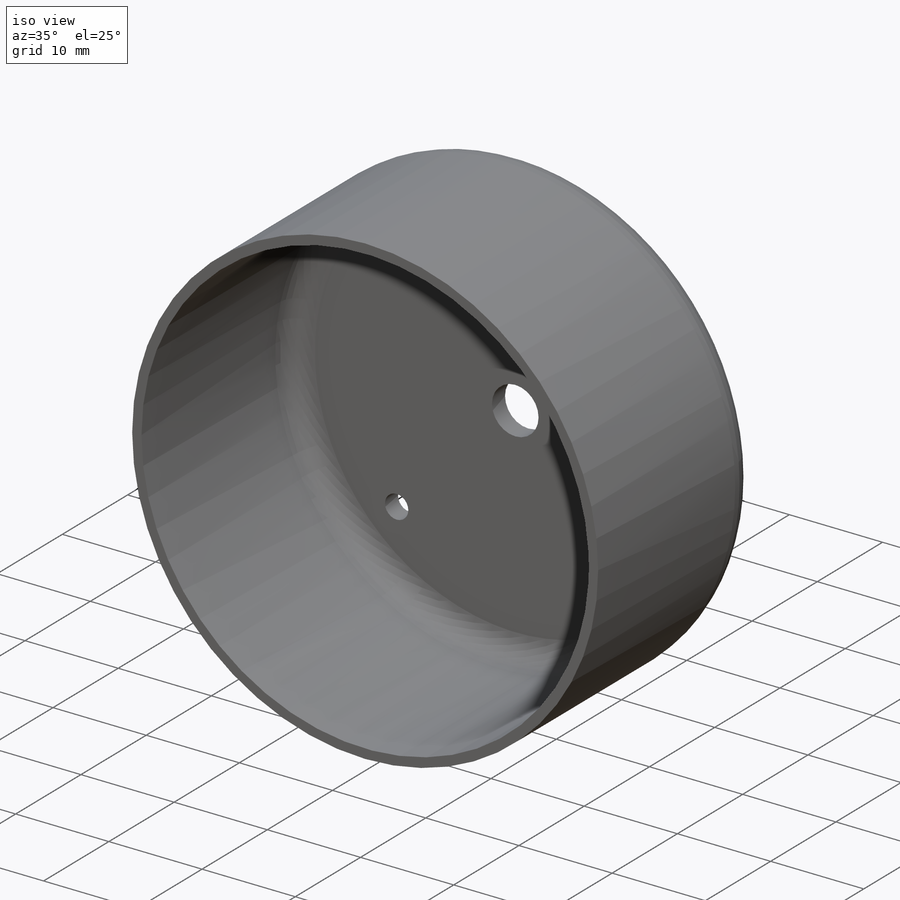
[diagram: iso view]
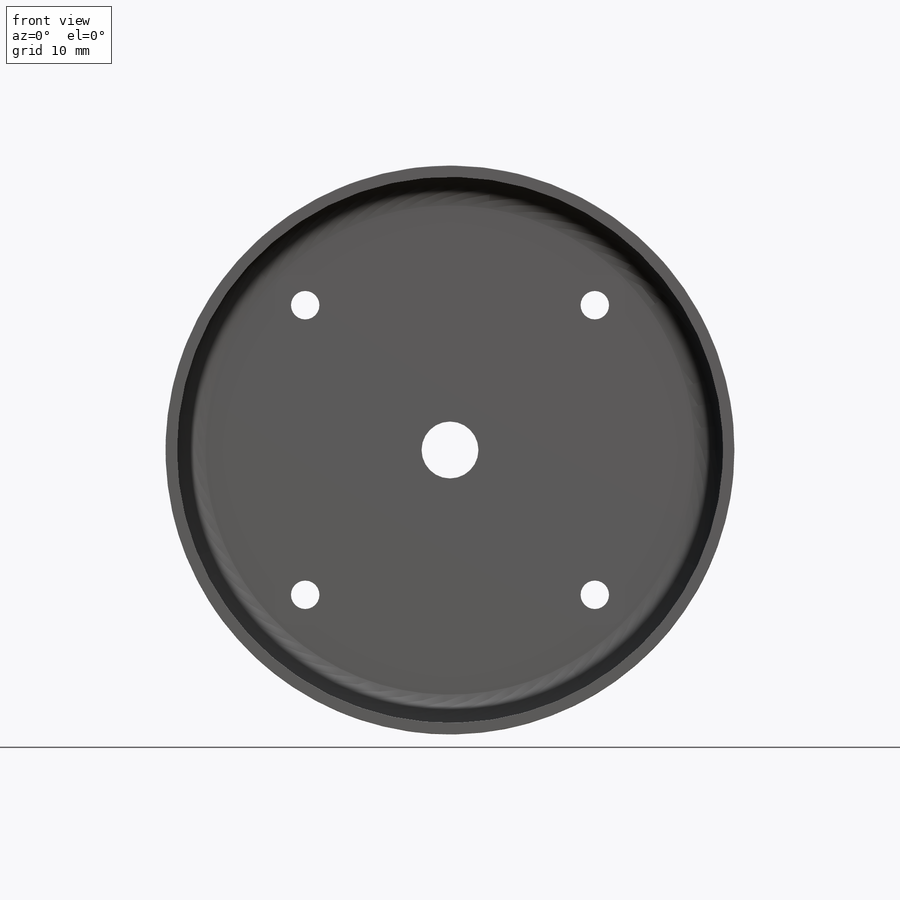
[diagram: front view]
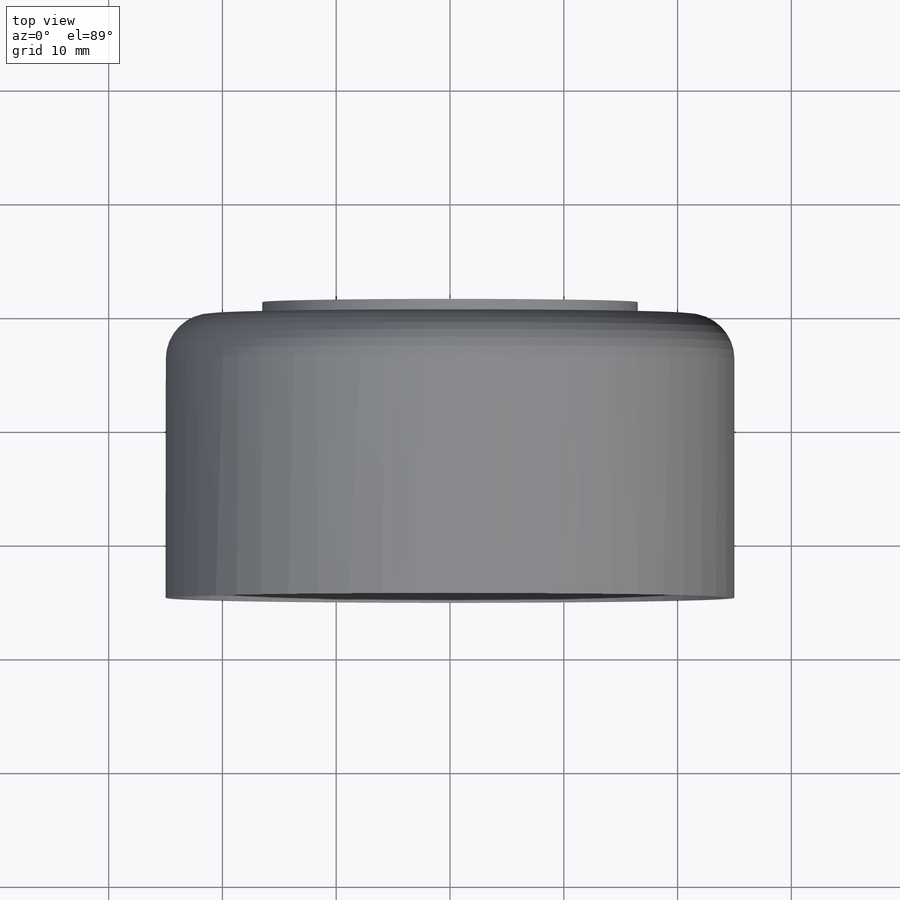
[diagram: top view]
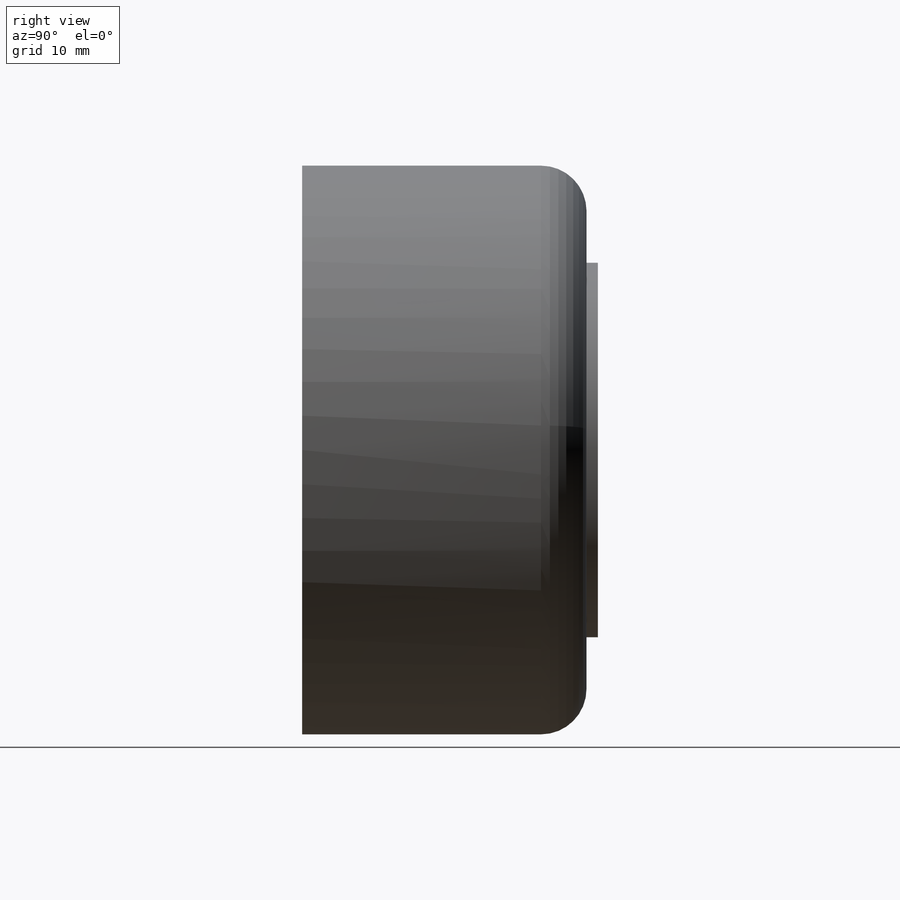
[diagram: right view]
SOLIDWORKS PART (.sldprt)
format: sldprt  version: not decoded by parser v0  size: 258,048 bytes
history: native  units: mm
features: sketch x6, extrude x2, fillet x2, material x1, shell x1, hole x1, pattern_circular x1, cut_extrude x1 (+12 scaffold rows collapsed)
feature tree (27):
  scaffold x12  (default folders/planes/origin — collapsed)
  material  "Material <not specified>"
  sketch  "Sketch1"  dims[D1=50.0mm]
  extrude  "Boss-Extrude1"  Depth=25mm
  shell  "Shell1"  Thickness=1mm
  sketch  "Sketch2"  dims[D1=31.0mm D2=1.0mm]
  extrude  "Boss-Extrude2"  Depth=1mm
  sketch  "Sketch3"  dims[c1.D1=36.0mm c1.D2=~32.885137mm c2.D2=45.0deg]
  hole  "Tap Drill for M3x0.5 Tap1"  Diameter=2.5mm Depth=9mm
  sketch  "Sketch5"
  sketch  "Sketch4"  dims[hole-wizard template sketch: 47 standard entries collapsed; hole parameters kept: c15.Hole Depth=9.0mm c15.D3=~14.816244mm c15.Drill Angle=118.0deg]
  pattern_circular  "CirPattern1"  Count=4 Angle=360deg
  fillet  "Fillet1"  Radius=4mm
  fillet  "Fillet2"  Radius=2.5mm
  sketch  "Sketch6"  dims[D1=5.0mm]
  cut_extrude  "Cut-Extrude1"  Depth=21mm
decode coverage: 13 of 14 modeling features carry decoded parameters
note: ~ marks probable driven/reference dimensions
note: suppression state not decoded; provenance and decode notes live in map.json
